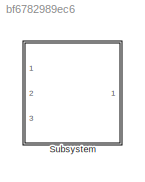
MODEL slx_bf6782989ec6
KIND model
CONFIG AbsTol = auto
CONFIG EnableMultiTasking = off
CONFIG FixedStep = auto
CONFIG MaxStep = auto
CONFIG MinStep = auto
CONFIG RelTol = 1e-3
CONFIG SampleTimeConstraint = Unconstrained
CONFIG Solver = VariableStepAuto
CONFIG SolverName = VariableStepAuto
CONFIG StartTime = 0.0
CONFIG StopTime = 10.0
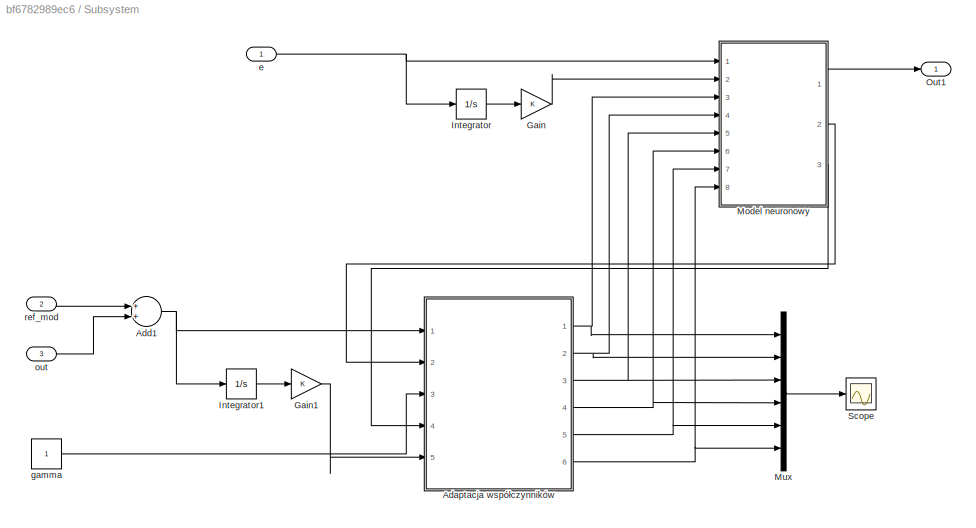
BLOCK [SubSystem] Subsystem
  Ports = [3, 1]
  RequestExecContextInheritance = off
  Variant = off
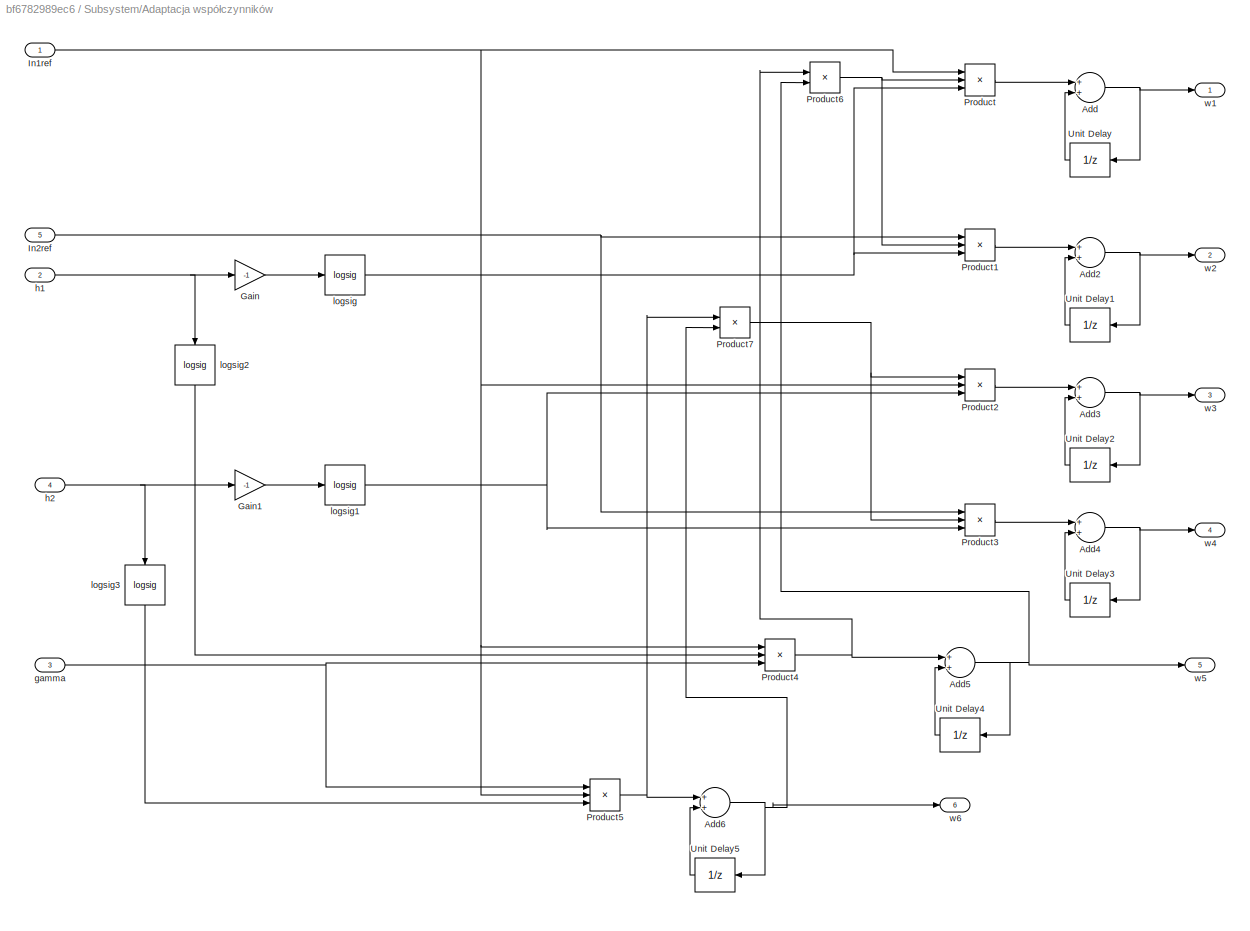
BLOCK [SubSystem] Subsystem/Adaptacja współczynników
  Ports = [5, 6]
  RequestExecContextInheritance = off
  Variant = off
BLOCK [Sum] Subsystem/Adaptacja współczynników/Add
  InputSameDT = off
  OutDataTypeStr = Inherit: Inherit via internal rule
  Ports = [2, 1]
  SaturateOnIntegerOverflow = off
BLOCK [Sum] Subsystem/Adaptacja współczynników/Add2
  InputSameDT = off
  OutDataTypeStr = Inherit: Inherit via internal rule
  Ports = [2, 1]
  SaturateOnIntegerOverflow = off
BLOCK [Sum] Subsystem/Adaptacja współczynników/Add3
  InputSameDT = off
  OutDataTypeStr = Inherit: Inherit via internal rule
  Ports = [2, 1]
  SaturateOnIntegerOverflow = off
BLOCK [Sum] Subsystem/Adaptacja współczynników/Add4
  InputSameDT = off
  OutDataTypeStr = Inherit: Inherit via internal rule
  Ports = [2, 1]
  SaturateOnIntegerOverflow = off
BLOCK [Sum] Subsystem/Adaptacja współczynników/Add5
  InputSameDT = off
  OutDataTypeStr = Inherit: Inherit via internal rule
  Ports = [2, 1]
  SaturateOnIntegerOverflow = off
BLOCK [Sum] Subsystem/Adaptacja współczynników/Add6
  InputSameDT = off
  OutDataTypeStr = Inherit: Inherit via internal rule
  Ports = [2, 1]
  SaturateOnIntegerOverflow = off
BLOCK [Gain] Subsystem/Adaptacja współczynników/Gain
  Gain = -1
  OutDataTypeStr = Inherit: Inherit via internal rule
  ParamDataTypeStr = Inherit: Inherit via internal rule
  SaturateOnIntegerOverflow = off
BLOCK [Gain] Subsystem/Adaptacja współczynników/Gain1
  Gain = -1
  OutDataTypeStr = Inherit: Inherit via internal rule
  ParamDataTypeStr = Inherit: Inherit via internal rule
  SaturateOnIntegerOverflow = off
BLOCK [Inport] Subsystem/Adaptacja współczynników/In1ref
  IconDisplay = Port number
BLOCK [Inport] Subsystem/Adaptacja współczynników/In2ref
  IconDisplay = Port number
  Port = 5
BLOCK [Product] Subsystem/Adaptacja współczynników/Product
  InputSameDT = off
  Inputs = 3
  OutDataTypeStr = Inherit: Inherit via internal rule
  Ports = [3, 1]
  RndMeth = Floor
  SaturateOnIntegerOverflow = off
BLOCK [Product] Subsystem/Adaptacja współczynników/Product1
  InputSameDT = off
  Inputs = 3
  OutDataTypeStr = Inherit: Inherit via internal rule
  Ports = [3, 1]
  RndMeth = Floor
  SaturateOnIntegerOverflow = off
BLOCK [Product] Subsystem/Adaptacja współczynników/Product2
  InputSameDT = off
  Inputs = 3
  OutDataTypeStr = Inherit: Inherit via internal rule
  Ports = [3, 1]
  RndMeth = Floor
  SaturateOnIntegerOverflow = off
BLOCK [Product] Subsystem/Adaptacja współczynników/Product3
  InputSameDT = off
  Inputs = 3
  OutDataTypeStr = Inherit: Inherit via internal rule
  Ports = [3, 1]
  RndMeth = Floor
  SaturateOnIntegerOverflow = off
BLOCK [Product] Subsystem/Adaptacja współczynników/Product4
  InputSameDT = off
  Inputs = 3
  OutDataTypeStr = Inherit: Inherit via internal rule
  Ports = [3, 1]
  RndMeth = Floor
  SaturateOnIntegerOverflow = off
BLOCK [Product] Subsystem/Adaptacja współczynników/Product5
  InputSameDT = off
  Inputs = 3
  OutDataTypeStr = Inherit: Inherit via internal rule
  Ports = [3, 1]
  RndMeth = Floor
  SaturateOnIntegerOverflow = off
BLOCK [Product] Subsystem/Adaptacja współczynników/Product6
  InputSameDT = off
  OutDataTypeStr = Inherit: Inherit via internal rule
  Ports = [2, 1]
  RndMeth = Floor
  SaturateOnIntegerOverflow = off
BLOCK [Product] Subsystem/Adaptacja współczynników/Product7
  InputSameDT = off
  OutDataTypeStr = Inherit: Inherit via internal rule
  Ports = [2, 1]
  RndMeth = Floor
  SaturateOnIntegerOverflow = off
BLOCK [UnitDelay] Subsystem/Adaptacja współczynników/Unit Delay
  InputProcessing = Elements as channels (sample based)
  SampleTime = -1
BLOCK [UnitDelay] Subsystem/Adaptacja współczynników/Unit Delay1
  InputProcessing = Elements as channels (sample based)
  SampleTime = -1
BLOCK [UnitDelay] Subsystem/Adaptacja współczynników/Unit Delay2
  InputProcessing = Elements as channels (sample based)
  SampleTime = -1
BLOCK [UnitDelay] Subsystem/Adaptacja współczynników/Unit Delay3
  InputProcessing = Elements as channels (sample based)
  SampleTime = -1
BLOCK [UnitDelay] Subsystem/Adaptacja współczynników/Unit Delay4
  InputProcessing = Elements as channels (sample based)
  SampleTime = -1
BLOCK [UnitDelay] Subsystem/Adaptacja współczynników/Unit Delay5
  InputProcessing = Elements as channels (sample based)
  SampleTime = -1
BLOCK [Inport] Subsystem/Adaptacja współczynników/gamma
  IconDisplay = Port number
  Port = 3
BLOCK [Inport] Subsystem/Adaptacja współczynników/h1
  IconDisplay = Port number
  Port = 2
BLOCK [Inport] Subsystem/Adaptacja współczynników/h2
  IconDisplay = Port number
  Port = 4
BLOCK [Reference] Subsystem/Adaptacja współczynników/logsig  REF=neural/Transfer Functions/logsig
  Ports = [1, 1]
  SourceBlock = neural/Transfer Functions/logsig
  SourceProductBaseCode = NN
  SourceProductName = Neural Network Toolbox
  SourceType = LOGSIG
BLOCK [Reference] Subsystem/Adaptacja współczynników/logsig1  REF=neural/Transfer Functions/logsig
  Ports = [1, 1]
  SourceBlock = neural/Transfer Functions/logsig
  SourceProductBaseCode = NN
  SourceProductName = Neural Network Toolbox
  SourceType = LOGSIG
BLOCK [Reference] Subsystem/Adaptacja współczynników/logsig2  REF=neural/Transfer Functions/logsig
  Ports = [1, 1]
  SourceBlock = neural/Transfer Functions/logsig
  SourceProductBaseCode = NN
  SourceProductName = Neural Network Toolbox
  SourceType = LOGSIG
BLOCK [Reference] Subsystem/Adaptacja współczynników/logsig3  REF=neural/Transfer Functions/logsig
  Ports = [1, 1]
  SourceBlock = neural/Transfer Functions/logsig
  SourceProductBaseCode = NN
  SourceProductName = Neural Network Toolbox
  SourceType = LOGSIG
BLOCK [Outport] Subsystem/Adaptacja współczynników/w1
  IconDisplay = Port number
BLOCK [Outport] Subsystem/Adaptacja współczynników/w2
  IconDisplay = Port number
  Port = 2
BLOCK [Outport] Subsystem/Adaptacja współczynników/w3
  IconDisplay = Port number
  Port = 3
BLOCK [Outport] Subsystem/Adaptacja współczynników/w4
  IconDisplay = Port number
  Port = 4
BLOCK [Outport] Subsystem/Adaptacja współczynników/w5
  IconDisplay = Port number
  Port = 5
BLOCK [Outport] Subsystem/Adaptacja współczynników/w6
  IconDisplay = Port number
  Port = 6
BLOCK [Sum] Subsystem/Add1
  InputSameDT = off
  OutDataTypeStr = Inherit: Inherit via internal rule
  Ports = [2, 1]
  SaturateOnIntegerOverflow = off
BLOCK [Gain] Subsystem/Gain
  OutDataTypeStr = Inherit: Inherit via internal rule
  ParamDataTypeStr = Inherit: Inherit via internal rule
  SaturateOnIntegerOverflow = off
BLOCK [Gain] Subsystem/Gain1
  OutDataTypeStr = Inherit: Inherit via internal rule
  ParamDataTypeStr = Inherit: Inherit via internal rule
  SaturateOnIntegerOverflow = off
BLOCK [Integrator] Subsystem/Integrator
  Ports = [1, 1]
BLOCK [Integrator] Subsystem/Integrator1
  Ports = [1, 1]
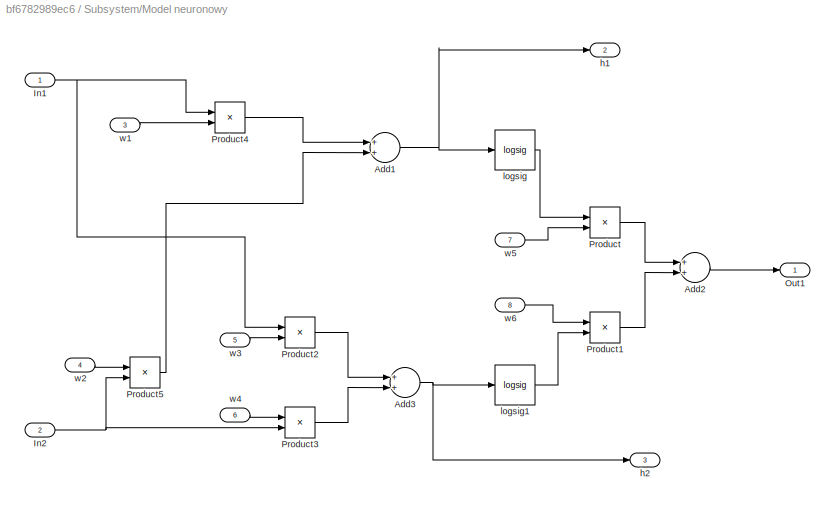
BLOCK [SubSystem] Subsystem/Model neuronowy
  Ports = [8, 3]
  RequestExecContextInheritance = off
  Variant = off
BLOCK [Sum] Subsystem/Model neuronowy/Add1
  InputSameDT = off
  OutDataTypeStr = Inherit: Inherit via internal rule
  Ports = [2, 1]
  SaturateOnIntegerOverflow = off
BLOCK [Sum] Subsystem/Model neuronowy/Add2
  InputSameDT = off
  OutDataTypeStr = Inherit: Inherit via internal rule
  Ports = [2, 1]
  SaturateOnIntegerOverflow = off
BLOCK [Sum] Subsystem/Model neuronowy/Add3
  InputSameDT = off
  OutDataTypeStr = Inherit: Inherit via internal rule
  Ports = [2, 1]
  SaturateOnIntegerOverflow = off
BLOCK [Inport] Subsystem/Model neuronowy/In1
  IconDisplay = Port number
BLOCK [Inport] Subsystem/Model neuronowy/In2
  IconDisplay = Port number
  Port = 2
BLOCK [Outport] Subsystem/Model neuronowy/Out1
  IconDisplay = Port number
BLOCK [Product] Subsystem/Model neuronowy/Product
  InputSameDT = off
  OutDataTypeStr = Inherit: Inherit via internal rule
  Ports = [2, 1]
  RndMeth = Floor
  SaturateOnIntegerOverflow = off
BLOCK [Product] Subsystem/Model neuronowy/Product1
  InputSameDT = off
  OutDataTypeStr = Inherit: Inherit via internal rule
  Ports = [2, 1]
  RndMeth = Floor
  SaturateOnIntegerOverflow = off
BLOCK [Product] Subsystem/Model neuronowy/Product2
  InputSameDT = off
  OutDataTypeStr = Inherit: Inherit via internal rule
  Ports = [2, 1]
  RndMeth = Floor
  SaturateOnIntegerOverflow = off
BLOCK [Product] Subsystem/Model neuronowy/Product3
  InputSameDT = off
  OutDataTypeStr = Inherit: Inherit via internal rule
  Ports = [2, 1]
  RndMeth = Floor
  SaturateOnIntegerOverflow = off
BLOCK [Product] Subsystem/Model neuronowy/Product4
  InputSameDT = off
  OutDataTypeStr = Inherit: Inherit via internal rule
  Ports = [2, 1]
  RndMeth = Floor
  SaturateOnIntegerOverflow = off
BLOCK [Product] Subsystem/Model neuronowy/Product5
  InputSameDT = off
  OutDataTypeStr = Inherit: Inherit via internal rule
  Ports = [2, 1]
  RndMeth = Floor
  SaturateOnIntegerOverflow = off
BLOCK [Outport] Subsystem/Model neuronowy/h1
  IconDisplay = Port number
  Port = 2
BLOCK [Outport] Subsystem/Model neuronowy/h2
  IconDisplay = Port number
  Port = 3
BLOCK [Reference] Subsystem/Model neuronowy/logsig  REF=neural/Transfer Functions/logsig
  Ports = [1, 1]
  SourceBlock = neural/Transfer Functions/logsig
  SourceProductBaseCode = NN
  SourceProductName = Neural Network Toolbox
  SourceType = LOGSIG
BLOCK [Reference] Subsystem/Model neuronowy/logsig1  REF=neural/Transfer Functions/logsig
  Ports = [1, 1]
  SourceBlock = neural/Transfer Functions/logsig
  SourceProductBaseCode = NN
  SourceProductName = Neural Network Toolbox
  SourceType = LOGSIG
BLOCK [Inport] Subsystem/Model neuronowy/w1
  IconDisplay = Port number
  Port = 3
BLOCK [Inport] Subsystem/Model neuronowy/w2
  IconDisplay = Port number
  Port = 4
BLOCK [Inport] Subsystem/Model neuronowy/w3
  IconDisplay = Port number
  Port = 5
BLOCK [Inport] Subsystem/Model neuronowy/w4
  IconDisplay = Port number
  Port = 6
BLOCK [Inport] Subsystem/Model neuronowy/w5
  IconDisplay = Port number
  Port = 7
BLOCK [Inport] Subsystem/Model neuronowy/w6
  IconDisplay = Port number
  Port = 8
BLOCK [Mux] Subsystem/Mux
  DisplayOption = bar
  Inputs = 6
  Ports = [6, 1]
BLOCK [Outport] Subsystem/Out1
  IconDisplay = Port number
BLOCK [Scope] Subsystem/Scope
  NumInputPorts = 1
  Ports = [1]
  ScopeSpecificationString = Simulink.scopes.TimeScopeBlockCfg('CurrentConfiguration', extmgr.ConfigurationSet(extmgr.Configuration('Core','General UI',true),extmgr.Configuration('Core','Source UI',true),extmgr.Configuration('Sources','WiredSimulink',true),extmgr.Configuration('Visuals','Time Domain',true),extmgr.Configuration('Tools','Plot Navigation',true),extmgr.Configuration('Tools','Measurements',true)),'Version','2017b'...<+1ch>
BLOCK [Inport] Subsystem/e
  IconDisplay = Port number
BLOCK [Constant] Subsystem/gamma
BLOCK [Inport] Subsystem/out
  IconDisplay = Port number
  Port = 3
BLOCK [Inport] Subsystem/ref_mod
  IconDisplay = Port number
  Port = 2
NET Subsystem/Adaptacja współczynników/Add2:1 -> Subsystem/Adaptacja współczynników/Unit Delay1:1, Subsystem/Adaptacja współczynników/w2:1
NET Subsystem/Adaptacja współczynników/Add3:1 -> Subsystem/Adaptacja współczynników/Unit Delay2:1, Subsystem/Adaptacja współczynników/w3:1
NET Subsystem/Adaptacja współczynników/Add4:1 -> Subsystem/Adaptacja współczynników/Unit Delay3:1, Subsystem/Adaptacja współczynników/w4:1
NET Subsystem/Adaptacja współczynników/Add5:1 -> Subsystem/Adaptacja współczynników/Product6:2, Subsystem/Adaptacja współczynników/Unit Delay4:1, Subsystem/Adaptacja współczynników/w5:1
NET Subsystem/Adaptacja współczynników/Add6:1 -> Subsystem/Adaptacja współczynników/Product7:2, Subsystem/Adaptacja współczynników/Unit Delay5:1, Subsystem/Adaptacja współczynników/w6:1
NET Subsystem/Adaptacja współczynników/Add:1 -> Subsystem/Adaptacja współczynników/Unit Delay:1, Subsystem/Adaptacja współczynników/w1:1
LINE Subsystem/Adaptacja współczynników/Gain1:1 -> Subsystem/Adaptacja współczynników/logsig1:1
LINE Subsystem/Adaptacja współczynników/Gain:1 -> Subsystem/Adaptacja współczynników/logsig:1
NET Subsystem/Adaptacja współczynników/In1ref:1 -> Subsystem/Adaptacja współczynników/Product2:2, Subsystem/Adaptacja współczynników/Product4:1, Subsystem/Adaptacja współczynników/Product5:2, Subsystem/Adaptacja współczynników/Product:1
NET Subsystem/Adaptacja współczynników/In2ref:1 -> Subsystem/Adaptacja współczynników/Product1:1, Subsystem/Adaptacja współczynników/Product3:1
LINE Subsystem/Adaptacja współczynników/Product1:1 -> Subsystem/Adaptacja współczynników/Add2:1
LINE Subsystem/Adaptacja współczynników/Product2:1 -> Subsystem/Adaptacja współczynników/Add3:1
LINE Subsystem/Adaptacja współczynników/Product3:1 -> Subsystem/Adaptacja współczynników/Add4:1
NET Subsystem/Adaptacja współczynników/Product4:1 -> Subsystem/Adaptacja współczynników/Add5:1, Subsystem/Adaptacja współczynników/Product6:1
NET Subsystem/Adaptacja współczynników/Product5:1 -> Subsystem/Adaptacja współczynników/Add6:1, Subsystem/Adaptacja współczynników/Product7:1
NET Subsystem/Adaptacja współczynników/Product6:1 -> Subsystem/Adaptacja współczynników/Product1:2, Subsystem/Adaptacja współczynników/Product:2
NET Subsystem/Adaptacja współczynników/Product7:1 -> Subsystem/Adaptacja współczynników/Product2:1, Subsystem/Adaptacja współczynników/Product3:2
LINE Subsystem/Adaptacja współczynników/Product:1 -> Subsystem/Adaptacja współczynników/Add:1
LINE Subsystem/Adaptacja współczynników/Unit Delay1:1 -> Subsystem/Adaptacja współczynników/Add2:2
LINE Subsystem/Adaptacja współczynników/Unit Delay2:1 -> Subsystem/Adaptacja współczynników/Add3:2
LINE Subsystem/Adaptacja współczynników/Unit Delay3:1 -> Subsystem/Adaptacja współczynników/Add4:2
LINE Subsystem/Adaptacja współczynników/Unit Delay4:1 -> Subsystem/Adaptacja współczynników/Add5:2
LINE Subsystem/Adaptacja współczynników/Unit Delay5:1 -> Subsystem/Adaptacja współczynników/Add6:2
LINE Subsystem/Adaptacja współczynników/Unit Delay:1 -> Subsystem/Adaptacja współczynników/Add:2
NET Subsystem/Adaptacja współczynników/gamma:1 -> Subsystem/Adaptacja współczynników/Product4:3, Subsystem/Adaptacja współczynników/Product5:1
NET Subsystem/Adaptacja współczynników/h1:1 -> Subsystem/Adaptacja współczynników/Gain:1, Subsystem/Adaptacja współczynników/logsig2:1
NET Subsystem/Adaptacja współczynników/h2:1 -> Subsystem/Adaptacja współczynników/Gain1:1, Subsystem/Adaptacja współczynników/logsig3:1
NET Subsystem/Adaptacja współczynników/logsig1:1 -> Subsystem/Adaptacja współczynników/Product2:3, Subsystem/Adaptacja współczynników/Product3:3
LINE Subsystem/Adaptacja współczynników/logsig2:1 -> Subsystem/Adaptacja współczynników/Product4:2
LINE Subsystem/Adaptacja współczynników/logsig3:1 -> Subsystem/Adaptacja współczynników/Product5:3
NET Subsystem/Adaptacja współczynników/logsig:1 -> Subsystem/Adaptacja współczynników/Product1:3, Subsystem/Adaptacja współczynników/Product:3
NET Subsystem/Adaptacja współczynników:1 -> Subsystem/Model neuronowy:3, Subsystem/Mux:1
NET Subsystem/Adaptacja współczynników:2 -> Subsystem/Model neuronowy:4, Subsystem/Mux:2
NET Subsystem/Adaptacja współczynników:3 -> Subsystem/Model neuronowy:5, Subsystem/Mux:3
NET Subsystem/Adaptacja współczynników:4 -> Subsystem/Model neuronowy:6, Subsystem/Mux:4
NET Subsystem/Adaptacja współczynników:5 -> Subsystem/Model neuronowy:7, Subsystem/Mux:5
NET Subsystem/Adaptacja współczynników:6 -> Subsystem/Model neuronowy:8, Subsystem/Mux:6
NET Subsystem/Add1:1 -> Subsystem/Adaptacja współczynników:1, Subsystem/Integrator1:1
LINE Subsystem/Gain1:1 -> Subsystem/Adaptacja współczynników:5
LINE Subsystem/Gain:1 -> Subsystem/Model neuronowy:2
LINE Subsystem/Integrator1:1 -> Subsystem/Gain1:1
LINE Subsystem/Integrator:1 -> Subsystem/Gain:1
NET Subsystem/Model neuronowy/Add1:1 -> Subsystem/Model neuronowy/h1:1, Subsystem/Model neuronowy/logsig:1
LINE Subsystem/Model neuronowy/Add2:1 -> Subsystem/Model neuronowy/Out1:1
NET Subsystem/Model neuronowy/Add3:1 -> Subsystem/Model neuronowy/h2:1, Subsystem/Model neuronowy/logsig1:1
NET Subsystem/Model neuronowy/In1:1 -> Subsystem/Model neuronowy/Product2:1, Subsystem/Model neuronowy/Product4:1
NET Subsystem/Model neuronowy/In2:1 -> Subsystem/Model neuronowy/Product3:2, Subsystem/Model neuronowy/Product5:2
LINE Subsystem/Model neuronowy/Product1:1 -> Subsystem/Model neuronowy/Add2:2
LINE Subsystem/Model neuronowy/Product2:1 -> Subsystem/Model neuronowy/Add3:1
LINE Subsystem/Model neuronowy/Product3:1 -> Subsystem/Model neuronowy/Add3:2
LINE Subsystem/Model neuronowy/Product4:1 -> Subsystem/Model neuronowy/Add1:1
LINE Subsystem/Model neuronowy/Product5:1 -> Subsystem/Model neuronowy/Add1:2
LINE Subsystem/Model neuronowy/Product:1 -> Subsystem/Model neuronowy/Add2:1
LINE Subsystem/Model neuronowy/logsig1:1 -> Subsystem/Model neuronowy/Product1:2
LINE Subsystem/Model neuronowy/logsig:1 -> Subsystem/Model neuronowy/Product:1
LINE Subsystem/Model neuronowy/w1:1 -> Subsystem/Model neuronowy/Product4:2
LINE Subsystem/Model neuronowy/w2:1 -> Subsystem/Model neuronowy/Product5:1
LINE Subsystem/Model neuronowy/w3:1 -> Subsystem/Model neuronowy/Product2:2
LINE Subsystem/Model neuronowy/w4:1 -> Subsystem/Model neuronowy/Product3:1
LINE Subsystem/Model neuronowy/w5:1 -> Subsystem/Model neuronowy/Product:2
LINE Subsystem/Model neuronowy/w6:1 -> Subsystem/Model neuronowy/Product1:1
LINE Subsystem/Model neuronowy:1 -> Subsystem/Out1:1
LINE Subsystem/Model neuronowy:2 -> Subsystem/Adaptacja współczynników:2
LINE Subsystem/Model neuronowy:3 -> Subsystem/Adaptacja współczynników:4
LINE Subsystem/Mux:1 -> Subsystem/Scope:1
NET Subsystem/e:1 -> Subsystem/Integrator:1, Subsystem/Model neuronowy:1
LINE Subsystem/gamma:1 -> Subsystem/Adaptacja współczynników:3
LINE Subsystem/out:1 -> Subsystem/Add1:2
LINE Subsystem/ref_mod:1 -> Subsystem/Add1:1
note: NET lines group one-source signal fan-out (src -> all destinations, sorted); 1:1 wires keep LINE
